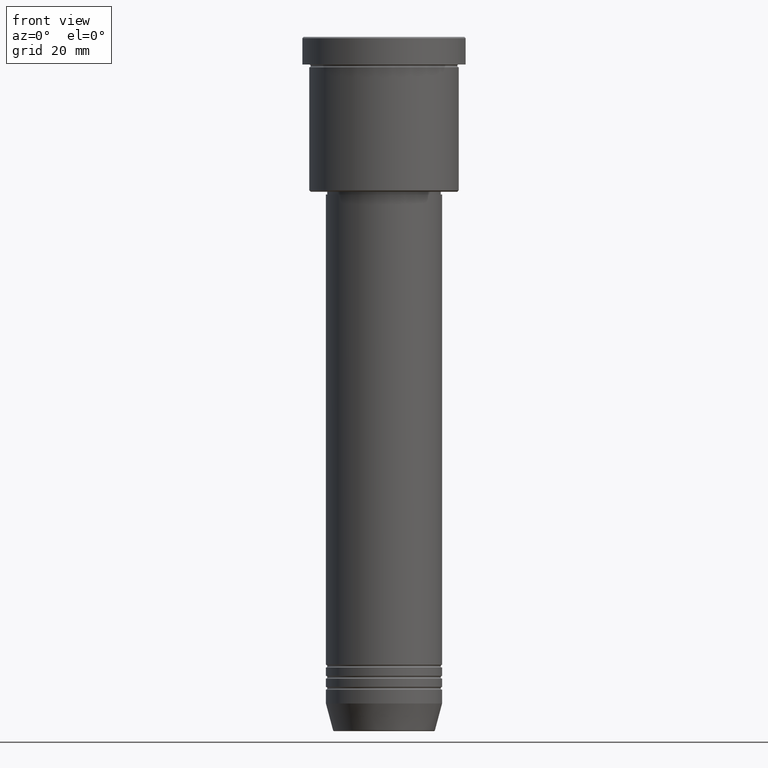
[diagram: clean part render]
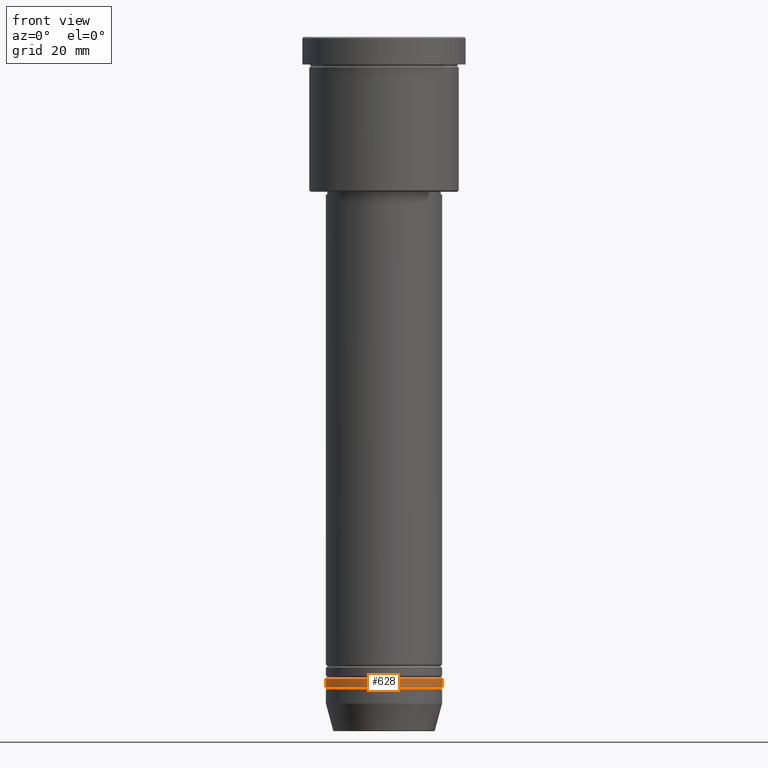
[diagram: same view with one face highlighted and labeled with its STEP entity id]
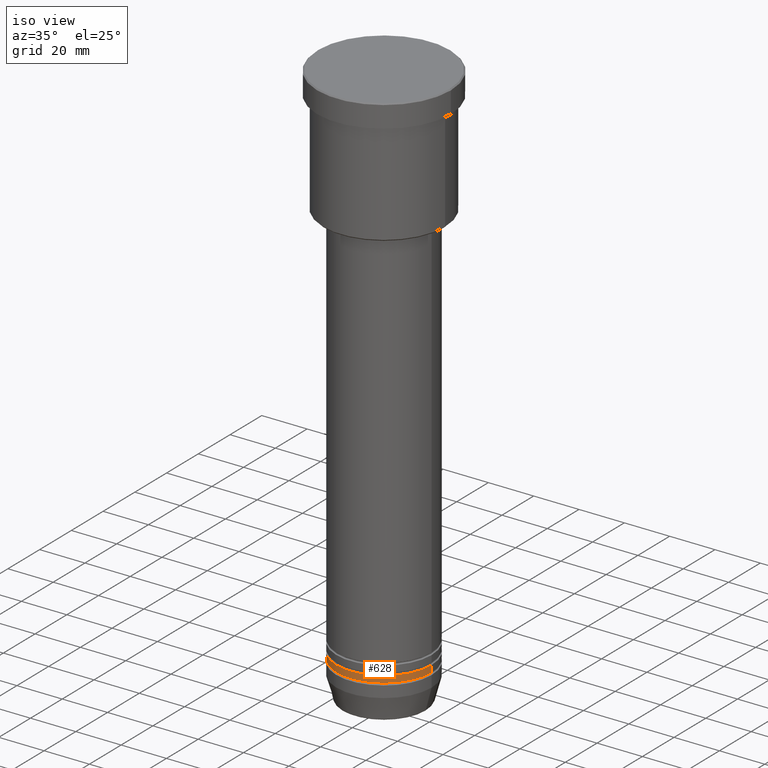
[diagram: same view with one face highlighted and labeled with its STEP entity id]
A machine part, front view. The second image highlights one B-rep face of the part: STEP entity #628.
A second angle (iso view) of the same face is appended — the face is thin or edge-on in the first view.
In plain terms, the highlighted cylindrical surface (partial cylindrical patch) has radius 21 mm, axis along (-0, -0, 1).
Its self-contained STEP definition (entity closure, byte-faithful):
#19 = VERTEX_POINT ( 'NONE', #884 ) ;
#31 = VERTEX_POINT ( 'NONE', #707 ) ;
#52 = CIRCLE ( 'NONE', #308, 21.00000000000000000 ) ;
#113 = ORIENTED_EDGE ( 'NONE', *, *, #812, .T. ) ;
#146 = AXIS2_PLACEMENT_3D ( 'NONE', #610, #877, #618 ) ;
#172 = EDGE_LOOP ( 'NONE', ( #395, #113, #804, #900 ) ) ;
#257 = CARTESIAN_POINT ( 'NONE',  ( 21.00000000000000000, 0.000000000000000000, -234.9999999999998863 ) ) ;
#260 = CYLINDRICAL_SURFACE ( 'NONE', #146, 21.00000000000000000 ) ;
#305 = DIRECTION ( 'NONE',  ( 1.000000000000000000, 0.000000000000000000, 0.000000000000000000 ) ) ;
#308 = AXIS2_PLACEMENT_3D ( 'NONE', #594, #399, #696 ) ;
#350 = DIRECTION ( 'NONE',  ( -0.000000000000000000, -0.000000000000000000, 1.000000000000000000 ) ) ;
#395 = ORIENTED_EDGE ( 'NONE', *, *, #855, .F. ) ;
#399 = DIRECTION ( 'NONE',  ( -0.000000000000000000, -0.000000000000000000, 1.000000000000000000 ) ) ;
#487 = DIRECTION ( 'NONE',  ( -0.000000000000000000, -0.000000000000000000, 1.000000000000000000 ) ) ;
#520 = FACE_OUTER_BOUND ( 'NONE', #172, .T. ) ;
#594 = CARTESIAN_POINT ( 'NONE',  ( 0.000000000000000000, 0.000000000000000000, -231.9999999999999147 ) ) ;
#599 = DIRECTION ( 'NONE',  ( -0.000000000000000000, -0.000000000000000000, 1.000000000000000000 ) ) ;
#608 = VECTOR ( 'NONE', #599, 1000.000000000000000 ) ;
#610 = CARTESIAN_POINT ( 'NONE',  ( 0.000000000000000000, 0.000000000000000000, 0.000000000000000000 ) ) ;
#618 = DIRECTION ( 'NONE',  ( 1.000000000000000000, 0.000000000000000000, 0.000000000000000000 ) ) ;
#628 = ADVANCED_FACE ( 'NONE', ( #520 ), #260, .T. ) ;
#674 = CARTESIAN_POINT ( 'NONE',  ( -21.00000000000000000, 2.571758278209441661E-15, -234.9999999999998863 ) ) ;
#683 = CARTESIAN_POINT ( 'NONE',  ( 0.000000000000000000, 0.000000000000000000, -234.9999999999998863 ) ) ;
#696 = DIRECTION ( 'NONE',  ( 1.000000000000000000, 0.000000000000000000, 0.000000000000000000 ) ) ;
#707 = CARTESIAN_POINT ( 'NONE',  ( 21.00000000000000000, 0.000000000000000000, -231.9999999999999147 ) ) ;
#730 = VERTEX_POINT ( 'NONE', #674 ) ;
#797 = CARTESIAN_POINT ( 'NONE',  ( -21.00000000000000000, 2.571758278209441661E-15, 0.000000000000000000 ) ) ;
#804 = ORIENTED_EDGE ( 'NONE', *, *, #845, .T. ) ;
#812 = EDGE_CURVE ( 'NONE', #730, #898, #816, .T. ) ;
#816 = CIRCLE ( 'NONE', #967, 21.00000000000000000 ) ;
#831 = EDGE_CURVE ( 'NONE', #19, #31, #52, .T. ) ;
#845 = EDGE_CURVE ( 'NONE', #898, #31, #1148, .T. ) ;
#855 = EDGE_CURVE ( 'NONE', #730, #19, #1084, .T. ) ;
#875 = VECTOR ( 'NONE', #350, 1000.000000000000000 ) ;
#877 = DIRECTION ( 'NONE',  ( -0.000000000000000000, -0.000000000000000000, 1.000000000000000000 ) ) ;
#884 = CARTESIAN_POINT ( 'NONE',  ( -21.00000000000000000, 2.571758278209441661E-15, -231.9999999999999147 ) ) ;
#898 = VERTEX_POINT ( 'NONE', #257 ) ;
#900 = ORIENTED_EDGE ( 'NONE', *, *, #831, .F. ) ;
#967 = AXIS2_PLACEMENT_3D ( 'NONE', #683, #487, #305 ) ;
#1058 = CARTESIAN_POINT ( 'NONE',  ( 21.00000000000000000, 0.000000000000000000, 0.000000000000000000 ) ) ;
#1084 = LINE ( 'NONE', #797, #875 ) ;
#1148 = LINE ( 'NONE', #1058, #608 ) ;